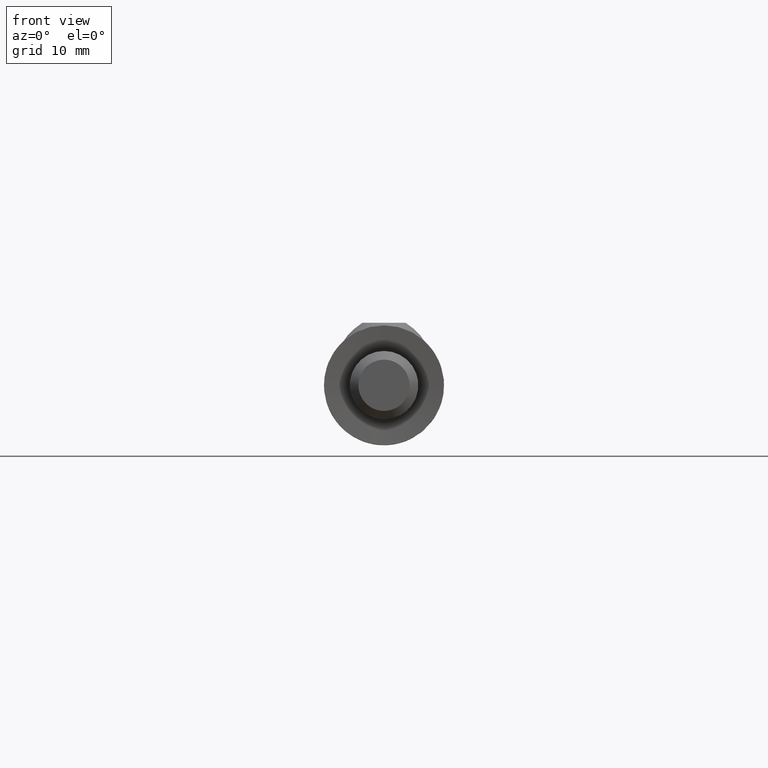
[diagram: clean part render]
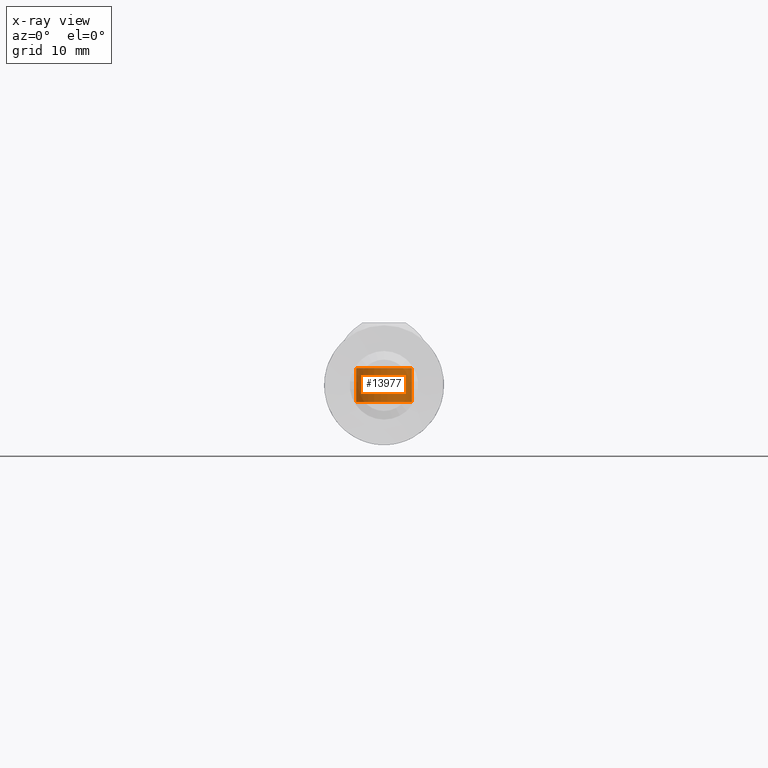
[diagram: x-ray — body ghosted, one internal face saturated and labeled with its STEP entity id]
A machine part, front view, then the same camera in x-ray: the body is ghosted and one INTERNAL B-rep face — a face not visible from any outside direction — is saturated and labeled: STEP entity #13977.
In plain terms, the highlighted cylindrical surface (bore or boss wall) has radius 3.25 mm, axis along (0, 0, 1).
Its self-contained STEP definition (entity closure, byte-faithful):
#710 = EDGE_LOOP ( 'NONE', ( #12067 ) ) ;
#1785 = DIRECTION ( 'NONE',  ( 1.000000000000000000, 0.000000000000000000, 0.000000000000000000 ) ) ;
#2509 = CIRCLE ( 'NONE', #16107, 3.250000000000000000 ) ;
#2874 = CARTESIAN_POINT ( 'NONE',  ( 0.000000000000000000, 7.000000000000002665, -7.000000000000000888 ) ) ;
#2948 = VERTEX_POINT ( 'NONE', #17441 ) ;
#7580 = FACE_OUTER_BOUND ( 'NONE', #17538, .T. ) ;
#8241 = DIRECTION ( 'NONE',  ( -1.000000000000000000, 0.000000000000000000, 0.000000000000000000 ) ) ;
#8858 = CARTESIAN_POINT ( 'NONE',  ( 0.000000000000000000, 7.000000000000002665, 2.000000000000000000 ) ) ;
#10302 = CYLINDRICAL_SURFACE ( 'NONE', #17933, 3.250000000000000000 ) ;
#10764 = FACE_OUTER_BOUND ( 'NONE', #710, .T. ) ;
#10956 = CIRCLE ( 'NONE', #18887, 3.250000000000000000 ) ;
#11397 = CARTESIAN_POINT ( 'NONE',  ( 0.000000000000000000, 7.000000000000002665, -2.000000000000000000 ) ) ;
#12067 = ORIENTED_EDGE ( 'NONE', *, *, #18154, .T. ) ;
#12726 = DIRECTION ( 'NONE',  ( 0.000000000000000000, 0.000000000000000000, -1.000000000000000000 ) ) ;
#13030 = DIRECTION ( 'NONE',  ( -0.000000000000000000, -0.000000000000000000, 1.000000000000000000 ) ) ;
#13186 = ORIENTED_EDGE ( 'NONE', *, *, #15040, .T. ) ;
#13977 = ADVANCED_FACE ( 'NONE', ( #7580, #10764 ), #10302, .F. ) ;
#15040 = EDGE_CURVE ( 'NONE', #18216, #18216, #10956, .T. ) ;
#15812 = DIRECTION ( 'NONE',  ( 1.000000000000000000, 0.000000000000000000, 0.000000000000000000 ) ) ;
#16107 = AXIS2_PLACEMENT_3D ( 'NONE', #8858, #17856, #1785 ) ;
#17243 = CARTESIAN_POINT ( 'NONE',  ( -3.250000000000000000, 7.000000000000002665, -2.000000000000000000 ) ) ;
#17441 = CARTESIAN_POINT ( 'NONE',  ( 3.250000000000000000, 7.000000000000002665, 2.000000000000000000 ) ) ;
#17538 = EDGE_LOOP ( 'NONE', ( #13186 ) ) ;
#17856 = DIRECTION ( 'NONE',  ( 0.000000000000000000, 0.000000000000000000, 1.000000000000000000 ) ) ;
#17933 = AXIS2_PLACEMENT_3D ( 'NONE', #2874, #13030, #15812 ) ;
#18154 = EDGE_CURVE ( 'NONE', #2948, #2948, #2509, .T. ) ;
#18216 = VERTEX_POINT ( 'NONE', #17243 ) ;
#18887 = AXIS2_PLACEMENT_3D ( 'NONE', #11397, #12726, #8241 ) ;